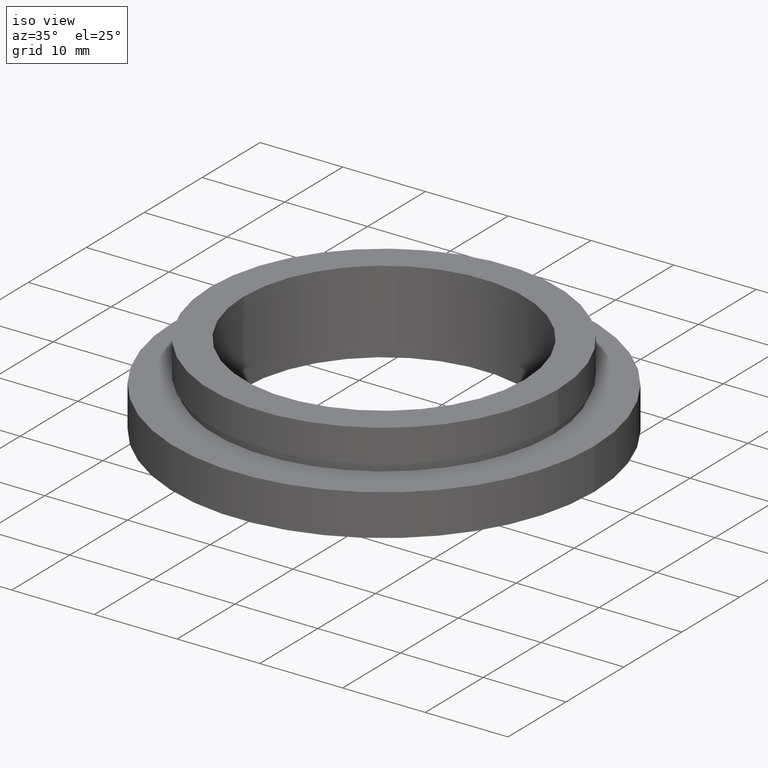
[diagram: clean part render]
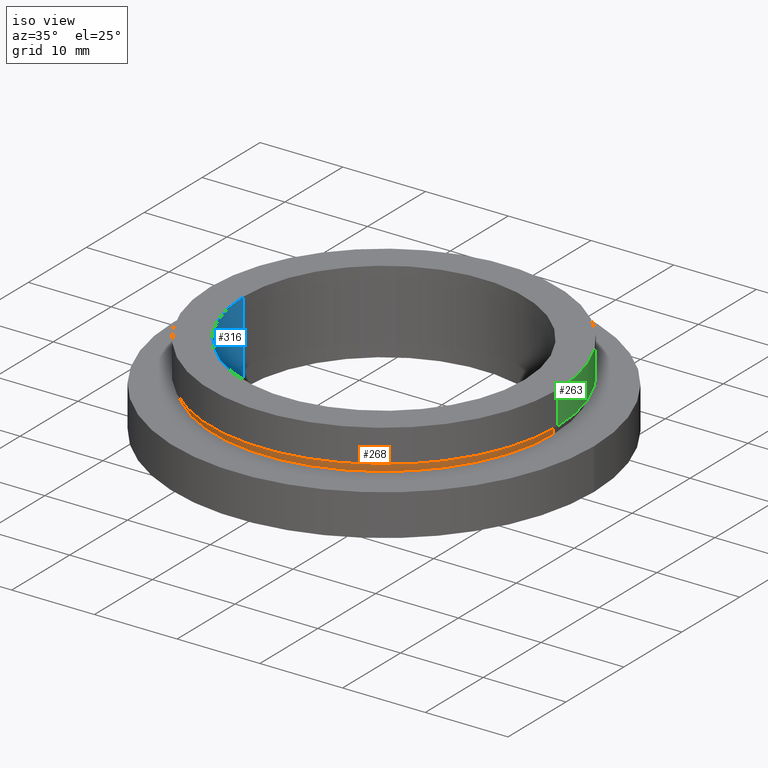
[diagram: same view with three faces highlighted in distinct colors, each labeled with its STEP entity id]
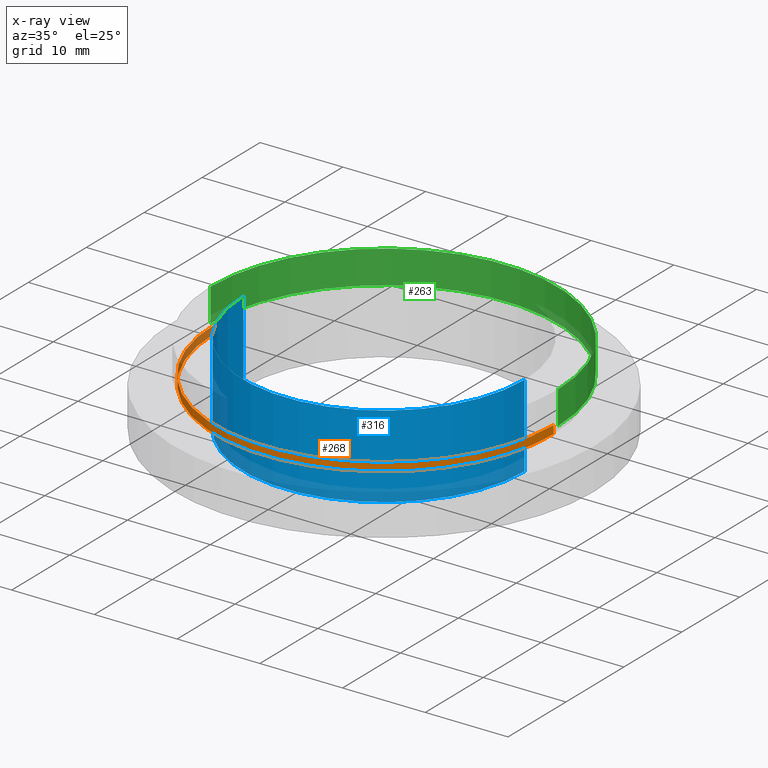
[diagram: x-ray of the same camera — body ghosted, the three highlighted faces saturated]
A machine part, iso view with three faces highlighted in distinct colors.
The next image is the same camera in x-ray (body ghosted, the three faces saturated) — at least one of them is partly hidden behind the body in this view.
Their STEP definitions:

[orange] entity #268 — the highlighted cylindrical surface (partial cylindrical patch) has radius 20.5 mm, axis along (-0, -0, -1).
#13 = CARTESIAN_POINT ( 'NONE',  ( 20.50000000000000400, 2.510525938252074500E-015, -4.000000000000000000 ) ) ;
#20 = DIRECTION ( 'NONE',  ( -0.0000000000000000000, -0.0000000000000000000, -1.000000000000000000 ) ) ;
#34 = CIRCLE ( 'NONE', #269, 20.50000000000000400 ) ;
#48 = CARTESIAN_POINT ( 'NONE',  ( 20.50000000000000400, 2.510525938252074500E-015, -5.000000000000000900 ) ) ;
#108 = LINE ( 'NONE', #355, #278 ) ;
#112 = VERTEX_POINT ( 'NONE', #13 ) ;
#113 = CARTESIAN_POINT ( 'NONE',  ( -20.50000000000000400, 0.0000000000000000000, -5.000000000000000900 ) ) ;
#156 = DIRECTION ( 'NONE',  ( -0.0000000000000000000, -0.0000000000000000000, -1.000000000000000000 ) ) ;
#173 = CYLINDRICAL_SURFACE ( 'NONE', #314, 20.50000000000000400 ) ;
#174 = ORIENTED_EDGE ( 'NONE', *, *, #209, .T. ) ;
#185 = CARTESIAN_POINT ( 'NONE',  ( -20.50000000000000400, 0.0000000000000000000, -4.000000000000000000 ) ) ;
#196 = AXIS2_PLACEMENT_3D ( 'NONE', #259, #20, #221 ) ;
#203 = LINE ( 'NONE', #432, #397 ) ;
#208 = ORIENTED_EDGE ( 'NONE', *, *, #213, .F. ) ;
#209 = EDGE_CURVE ( 'NONE', #235, #372, #108, .T. ) ;
#213 = EDGE_CURVE ( 'NONE', #112, #344, #203, .T. ) ;
#218 = ORIENTED_EDGE ( 'NONE', *, *, #331, .F. ) ;
#221 = DIRECTION ( 'NONE',  ( -1.000000000000000000, 0.0000000000000000000, 0.0000000000000000000 ) ) ;
#235 = VERTEX_POINT ( 'NONE', #185 ) ;
#254 = DIRECTION ( 'NONE',  ( -0.0000000000000000000, -0.0000000000000000000, -1.000000000000000000 ) ) ;
#256 = CIRCLE ( 'NONE', #196, 20.50000000000000400 ) ;
#259 = CARTESIAN_POINT ( 'NONE',  ( 0.0000000000000000000, 0.0000000000000000000, -5.000000000000000900 ) ) ;
#268 = ADVANCED_FACE ( 'NONE', ( #425 ), #173, .T. ) ;
#269 = AXIS2_PLACEMENT_3D ( 'NONE', #417, #387, #383 ) ;
#271 = DIRECTION ( 'NONE',  ( -0.0000000000000000000, -0.0000000000000000000, -1.000000000000000000 ) ) ;
#278 = VECTOR ( 'NONE', #254, 1000.000000000000000 ) ;
#314 = AXIS2_PLACEMENT_3D ( 'NONE', #399, #271, #428 ) ;
#331 = EDGE_CURVE ( 'NONE', #344, #372, #256, .T. ) ;
#344 = VERTEX_POINT ( 'NONE', #48 ) ;
#347 = EDGE_CURVE ( 'NONE', #112, #235, #34, .T. ) ;
#352 = EDGE_LOOP ( 'NONE', ( #208, #367, #174, #218 ) ) ;
#355 = CARTESIAN_POINT ( 'NONE',  ( -20.50000000000000400, 0.0000000000000000000, -19.14057971014493000 ) ) ;
#367 = ORIENTED_EDGE ( 'NONE', *, *, #347, .T. ) ;
#372 = VERTEX_POINT ( 'NONE', #113 ) ;
#383 = DIRECTION ( 'NONE',  ( -1.000000000000000000, 0.0000000000000000000, 0.0000000000000000000 ) ) ;
#387 = DIRECTION ( 'NONE',  ( -0.0000000000000000000, -0.0000000000000000000, -1.000000000000000000 ) ) ;
#397 = VECTOR ( 'NONE', #156, 1000.000000000000000 ) ;
#399 = CARTESIAN_POINT ( 'NONE',  ( 0.0000000000000000000, 0.0000000000000000000, -19.14057971014493000 ) ) ;
#417 = CARTESIAN_POINT ( 'NONE',  ( 0.0000000000000000000, 0.0000000000000000000, -4.000000000000000000 ) ) ;
#425 = FACE_OUTER_BOUND ( 'NONE', #352, .T. ) ;
#428 = DIRECTION ( 'NONE',  ( -1.000000000000000000, 0.0000000000000000000, 0.0000000000000000000 ) ) ;
#432 = CARTESIAN_POINT ( 'NONE',  ( 20.50000000000000400, 2.510525938252074500E-015, -19.14057971014493000 ) ) ;

[blue] entity #316 — the highlighted cylindrical surface (partial cylindrical patch) has radius 17 mm, axis along (-0, -0, -1).
#26 = CIRCLE ( 'NONE', #164, 17.00000000000000400 ) ;
#30 = EDGE_CURVE ( 'NONE', #315, #326, #63, .T. ) ;
#50 = CARTESIAN_POINT ( 'NONE',  ( 17.00000000000000400, 2.081899558550500700E-015, -9.999999999999998200 ) ) ;
#55 = DIRECTION ( 'NONE',  ( -1.000000000000000000, 0.0000000000000000000, 0.0000000000000000000 ) ) ;
#57 = ORIENTED_EDGE ( 'NONE', *, *, #30, .F. ) ;
#60 = LINE ( 'NONE', #134, #332 ) ;
#63 = LINE ( 'NONE', #80, #236 ) ;
#80 = CARTESIAN_POINT ( 'NONE',  ( -17.00000000000000400, 0.0000000000000000000, -19.14057971014493000 ) ) ;
#90 = CARTESIAN_POINT ( 'NONE',  ( 0.0000000000000000000, 0.0000000000000000000, 0.0000000000000000000 ) ) ;
#98 = EDGE_CURVE ( 'NONE', #304, #326, #258, .T. ) ;
#110 = DIRECTION ( 'NONE',  ( -0.0000000000000000000, -0.0000000000000000000, -1.000000000000000000 ) ) ;
#115 = ORIENTED_EDGE ( 'NONE', *, *, #400, .T. ) ;
#118 = CARTESIAN_POINT ( 'NONE',  ( -17.00000000000000400, 0.0000000000000000000, 0.0000000000000000000 ) ) ;
#134 = CARTESIAN_POINT ( 'NONE',  ( 17.00000000000000400, 2.081899558550500700E-015, -19.14057971014493000 ) ) ;
#139 = ORIENTED_EDGE ( 'NONE', *, *, #309, .F. ) ;
#146 = CARTESIAN_POINT ( 'NONE',  ( 17.00000000000000400, 2.081899558550500700E-015, 0.0000000000000000000 ) ) ;
#164 = AXIS2_PLACEMENT_3D ( 'NONE', #90, #301, #55 ) ;
#171 = CYLINDRICAL_SURFACE ( 'NONE', #222, 17.00000000000000400 ) ;
#189 = CARTESIAN_POINT ( 'NONE',  ( 0.0000000000000000000, 0.0000000000000000000, -19.14057971014493000 ) ) ;
#215 = EDGE_LOOP ( 'NONE', ( #139, #115, #406, #57 ) ) ;
#220 = DIRECTION ( 'NONE',  ( -0.0000000000000000000, -0.0000000000000000000, -1.000000000000000000 ) ) ;
#222 = AXIS2_PLACEMENT_3D ( 'NONE', #189, #333, #394 ) ;
#225 = CARTESIAN_POINT ( 'NONE',  ( -17.00000000000000400, 0.0000000000000000000, -9.999999999999998200 ) ) ;
#236 = VECTOR ( 'NONE', #110, 1000.000000000000000 ) ;
#251 = DIRECTION ( 'NONE',  ( -1.000000000000000000, 0.0000000000000000000, 0.0000000000000000000 ) ) ;
#255 = FACE_OUTER_BOUND ( 'NONE', #215, .T. ) ;
#258 = CIRCLE ( 'NONE', #351, 17.00000000000000400 ) ;
#289 = CARTESIAN_POINT ( 'NONE',  ( 0.0000000000000000000, 0.0000000000000000000, -9.999999999999998200 ) ) ;
#301 = DIRECTION ( 'NONE',  ( -0.0000000000000000000, -0.0000000000000000000, -1.000000000000000000 ) ) ;
#303 = VERTEX_POINT ( 'NONE', #146 ) ;
#304 = VERTEX_POINT ( 'NONE', #50 ) ;
#309 = EDGE_CURVE ( 'NONE', #303, #315, #26, .T. ) ;
#311 = DIRECTION ( 'NONE',  ( -0.0000000000000000000, -0.0000000000000000000, -1.000000000000000000 ) ) ;
#315 = VERTEX_POINT ( 'NONE', #118 ) ;
#316 = ADVANCED_FACE ( 'NONE', ( #255 ), #171, .F. ) ;
#326 = VERTEX_POINT ( 'NONE', #225 ) ;
#332 = VECTOR ( 'NONE', #311, 1000.000000000000000 ) ;
#333 = DIRECTION ( 'NONE',  ( -0.0000000000000000000, -0.0000000000000000000, -1.000000000000000000 ) ) ;
#351 = AXIS2_PLACEMENT_3D ( 'NONE', #289, #220, #251 ) ;
#394 = DIRECTION ( 'NONE',  ( -1.000000000000000000, 0.0000000000000000000, 0.0000000000000000000 ) ) ;
#400 = EDGE_CURVE ( 'NONE', #303, #304, #60, .T. ) ;
#406 = ORIENTED_EDGE ( 'NONE', *, *, #98, .T. ) ;

[green] entity #263 — the highlighted cylindrical surface (partial cylindrical patch) has radius 21 mm, axis along (-0, -0, -1).
#25 = CARTESIAN_POINT ( 'NONE',  ( -21.00000000000000400, 0.0000000000000000000, -19.14057971014493000 ) ) ;
#28 = VECTOR ( 'NONE', #179, 1000.000000000000000 ) ;
#29 = DIRECTION ( 'NONE',  ( -0.0000000000000000000, -0.0000000000000000000, -1.000000000000000000 ) ) ;
#33 = CARTESIAN_POINT ( 'NONE',  ( 21.00000000000000400, 2.571758278209442100E-015, -4.000000000000000000 ) ) ;
#59 = CARTESIAN_POINT ( 'NONE',  ( 0.0000000000000000000, 0.0000000000000000000, -19.14057971014493000 ) ) ;
#73 = ORIENTED_EDGE ( 'NONE', *, *, #276, .F. ) ;
#76 = DIRECTION ( 'NONE',  ( -1.000000000000000000, 0.0000000000000000000, 0.0000000000000000000 ) ) ;
#77 = AXIS2_PLACEMENT_3D ( 'NONE', #59, #29, #94 ) ;
#83 = DIRECTION ( 'NONE',  ( -0.0000000000000000000, -0.0000000000000000000, -1.000000000000000000 ) ) ;
#84 = VERTEX_POINT ( 'NONE', #33 ) ;
#94 = DIRECTION ( 'NONE',  ( -1.000000000000000000, 0.0000000000000000000, 0.0000000000000000000 ) ) ;
#105 = EDGE_CURVE ( 'NONE', #125, #84, #132, .T. ) ;
#109 = CARTESIAN_POINT ( 'NONE',  ( 0.0000000000000000000, 0.0000000000000000000, -4.000000000000000000 ) ) ;
#125 = VERTEX_POINT ( 'NONE', #354 ) ;
#132 = CIRCLE ( 'NONE', #165, 21.00000000000000400 ) ;
#142 = VECTOR ( 'NONE', #229, 1000.000000000000000 ) ;
#149 = CYLINDRICAL_SURFACE ( 'NONE', #77, 21.00000000000000400 ) ;
#157 = VERTEX_POINT ( 'NONE', #325 ) ;
#158 = ORIENTED_EDGE ( 'NONE', *, *, #192, .T. ) ;
#165 = AXIS2_PLACEMENT_3D ( 'NONE', #109, #324, #76 ) ;
#178 = FACE_OUTER_BOUND ( 'NONE', #194, .T. ) ;
#179 = DIRECTION ( 'NONE',  ( -0.0000000000000000000, -0.0000000000000000000, -1.000000000000000000 ) ) ;
#192 = EDGE_CURVE ( 'NONE', #219, #84, #273, .T. ) ;
#194 = EDGE_LOOP ( 'NONE', ( #313, #158, #293, #73 ) ) ;
#219 = VERTEX_POINT ( 'NONE', #426 ) ;
#229 = DIRECTION ( 'NONE',  ( -0.0000000000000000000, -0.0000000000000000000, -1.000000000000000000 ) ) ;
#242 = AXIS2_PLACEMENT_3D ( 'NONE', #329, #83, #294 ) ;
#263 = ADVANCED_FACE ( 'NONE', ( #178 ), #149, .T. ) ;
#273 = LINE ( 'NONE', #288, #28 ) ;
#276 = EDGE_CURVE ( 'NONE', #157, #125, #318, .T. ) ;
#288 = CARTESIAN_POINT ( 'NONE',  ( 21.00000000000000400, 2.571758278209442100E-015, -19.14057971014493000 ) ) ;
#293 = ORIENTED_EDGE ( 'NONE', *, *, #105, .F. ) ;
#294 = DIRECTION ( 'NONE',  ( -1.000000000000000000, 0.0000000000000000000, 0.0000000000000000000 ) ) ;
#313 = ORIENTED_EDGE ( 'NONE', *, *, #338, .T. ) ;
#318 = LINE ( 'NONE', #25, #142 ) ;
#324 = DIRECTION ( 'NONE',  ( -0.0000000000000000000, -0.0000000000000000000, -1.000000000000000000 ) ) ;
#325 = CARTESIAN_POINT ( 'NONE',  ( -21.00000000000000400, 0.0000000000000000000, 0.0000000000000000000 ) ) ;
#329 = CARTESIAN_POINT ( 'NONE',  ( 0.0000000000000000000, 0.0000000000000000000, 0.0000000000000000000 ) ) ;
#338 = EDGE_CURVE ( 'NONE', #157, #219, #349, .T. ) ;
#349 = CIRCLE ( 'NONE', #242, 21.00000000000000400 ) ;
#354 = CARTESIAN_POINT ( 'NONE',  ( -21.00000000000000400, 0.0000000000000000000, -4.000000000000000000 ) ) ;
#426 = CARTESIAN_POINT ( 'NONE',  ( 21.00000000000000400, 2.571758278209442100E-015, 0.0000000000000000000 ) ) ;